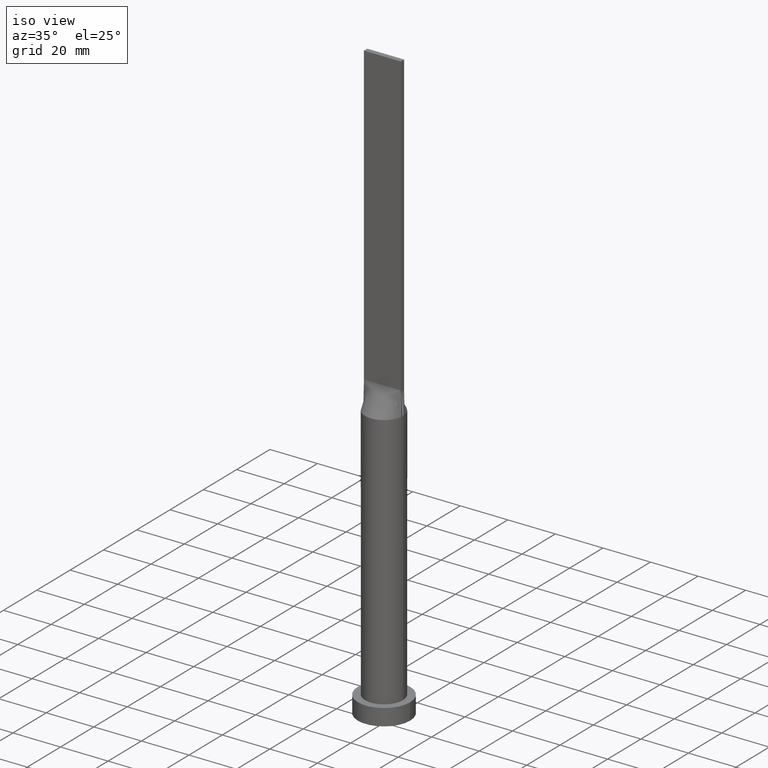
[diagram: clean part render]
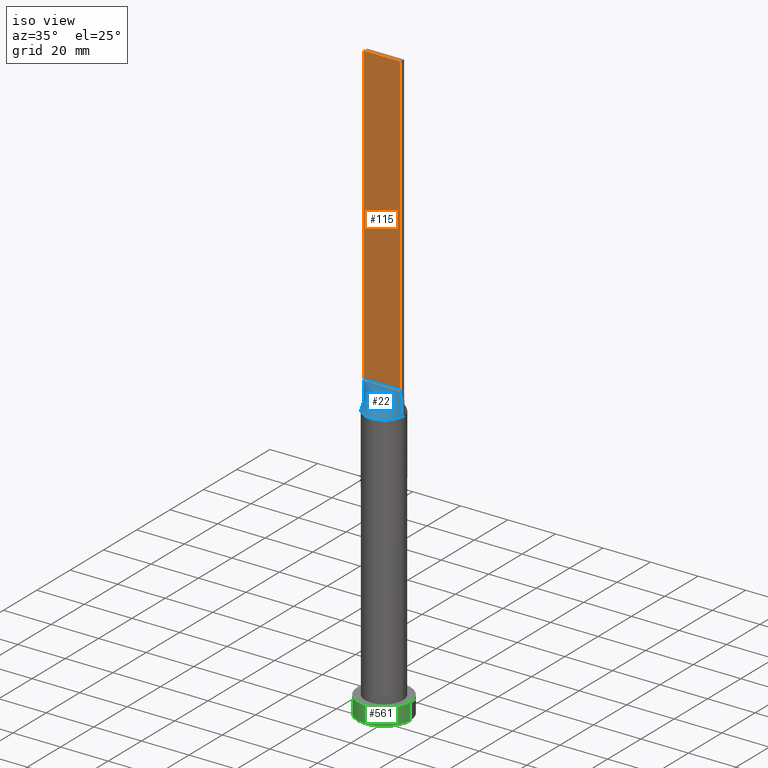
[diagram: same view with three faces highlighted in distinct colors, each labeled with its STEP entity id]
A machine part, iso view with three faces highlighted in distinct colors.
Their STEP definitions:

[orange] entity #115 — the highlighted planar face has unit normal (0, 1, -0).
#6 = AXIS2_PLACEMENT_3D ( 'NONE', #38, #395, #391 ) ;
#13 = CARTESIAN_POINT ( 'NONE',  ( -7.750000000000000000, -0.9999999999999986677, 250.0000000000000000 ) ) ;
#15 = ORIENTED_EDGE ( 'NONE', *, *, #418, .T. ) ;
#28 = ORIENTED_EDGE ( 'NONE', *, *, #385, .F. ) ;
#31 = CARTESIAN_POINT ( 'NONE',  ( 7.750000000000000000, -0.9999999999999997780, 250.0000000000000000 ) ) ;
#35 = CARTESIAN_POINT ( 'NONE',  ( 7.750000000000000000, -0.9999999999999997780, 125.0000000000000000 ) ) ;
#38 = CARTESIAN_POINT ( 'NONE',  ( -7.750000000000000000, -0.9999999999999986677, 250.0000000000000000 ) ) ;
#66 = ORIENTED_EDGE ( 'NONE', *, *, #503, .T. ) ;
#80 = VERTEX_POINT ( 'NONE', #31 ) ;
#115 = ADVANCED_FACE ( 'NONE', ( #487 ), #493, .F. ) ;
#144 = CARTESIAN_POINT ( 'NONE',  ( -7.750000000000000000, -0.9999999999999986677, 125.0000000000000000 ) ) ;
#166 = LINE ( 'NONE', #13, #420 ) ;
#167 = ORIENTED_EDGE ( 'NONE', *, *, #442, .F. ) ;
#180 = LINE ( 'NONE', #186, #358 ) ;
#186 = CARTESIAN_POINT ( 'NONE',  ( -7.750000000000000000, -0.9999999999999986677, 125.0000000000000000 ) ) ;
#205 = VECTOR ( 'NONE', #286, 1000.000000000000000 ) ;
#217 = CARTESIAN_POINT ( 'NONE',  ( -7.750000000000000000, -0.9999999999999986677, 250.0000000000000000 ) ) ;
#223 = VERTEX_POINT ( 'NONE', #144 ) ;
#231 = CARTESIAN_POINT ( 'NONE',  ( 7.750000000000000000, -0.9999999999999997780, 250.0000000000000000 ) ) ;
#284 = DIRECTION ( 'NONE',  ( -0.000000000000000000, -0.000000000000000000, -1.000000000000000000 ) ) ;
#286 = DIRECTION ( 'NONE',  ( -0.000000000000000000, -0.000000000000000000, -1.000000000000000000 ) ) ;
#333 = EDGE_LOOP ( 'NONE', ( #66, #167, #28, #15 ) ) ;
#344 = LINE ( 'NONE', #622, #458 ) ;
#358 = VECTOR ( 'NONE', #483, 1000.000000000000000 ) ;
#379 = VERTEX_POINT ( 'NONE', #217 ) ;
#385 = EDGE_CURVE ( 'NONE', #379, #80, #166, .T. ) ;
#391 = DIRECTION ( 'NONE',  ( -1.000000000000000000, 6.994852725712931474E-17, 0.000000000000000000 ) ) ;
#395 = DIRECTION ( 'NONE',  ( 6.994852725712931474E-17, 1.000000000000000000, -0.000000000000000000 ) ) ;
#415 = VERTEX_POINT ( 'NONE', #35 ) ;
#418 = EDGE_CURVE ( 'NONE', #379, #223, #344, .T. ) ;
#420 = VECTOR ( 'NONE', #562, 1000.000000000000000 ) ;
#442 = EDGE_CURVE ( 'NONE', #80, #415, #535, .T. ) ;
#458 = VECTOR ( 'NONE', #284, 1000.000000000000000 ) ;
#483 = DIRECTION ( 'NONE',  ( 1.000000000000000000, -6.994852725712931474E-17, 0.000000000000000000 ) ) ;
#487 = FACE_OUTER_BOUND ( 'NONE', #333, .T. ) ;
#493 = PLANE ( 'NONE',  #6 ) ;
#503 = EDGE_CURVE ( 'NONE', #223, #415, #180, .T. ) ;
#535 = LINE ( 'NONE', #231, #205 ) ;
#562 = DIRECTION ( 'NONE',  ( 1.000000000000000000, -6.994852725712931474E-17, 0.000000000000000000 ) ) ;
#622 = CARTESIAN_POINT ( 'NONE',  ( -7.750000000000000000, -0.9999999999999986677, 250.0000000000000000 ) ) ;

[blue] entity #22 — the highlighted face is a freeform B-spline surface patch.
#14 = CARTESIAN_POINT ( 'NONE',  ( 2.847317194822259534, -7.497028652483948008, 115.0000000000000284 ) ) ;
#19 = DIRECTION ( 'NONE',  ( -0.01841911599500831165, 0.002376660128388246706, 0.9998275289531671772 ) ) ;
#22 = ADVANCED_FACE ( 'NONE', ( #269 ), #638, .T. ) ;
#35 = CARTESIAN_POINT ( 'NONE',  ( 7.750000000000000000, -0.9999999999999997780, 125.0000000000000000 ) ) ;
#49 = CARTESIAN_POINT ( 'NONE',  ( -5.166666666666667851, -0.9999999999999986677, 125.0000000000000000 ) ) ;
#53 = CARTESIAN_POINT ( 'NONE',  ( -2.302877821226939403, -7.683241396761614439, 115.0000000000000568 ) ) ;
#55 = CARTESIAN_POINT ( 'NONE',  ( -4.197916666666667851, -0.9999999999999986677, 125.0000000000000000 ) ) ;
#56 = CARTESIAN_POINT ( 'NONE',  ( 6.511821874825406198, -4.668925682402793598, 115.0000000000000000 ) ) ;
#58 = CARTESIAN_POINT ( 'NONE',  ( -1.291666666666670071, -0.9999999999999991118, 125.0000000000000000 ) ) ;
#60 = CARTESIAN_POINT ( 'NONE',  ( 1.291666666666661856, -0.9999999999999991118, 125.0000000000000000 ) ) ;
#71 = CARTESIAN_POINT ( 'NONE',  ( -4.333237558274724677, -6.745559271922134670, 115.0000000000000284 ) ) ;
#74 = CARTESIAN_POINT ( 'NONE',  ( 7.104166666666666963, -0.9999999999999995559, 125.0000000000000000 ) ) ;
#91 = LINE ( 'NONE', #219, #408 ) ;
#94 = CARTESIAN_POINT ( 'NONE',  ( 0.000000000000000000, 0.000000000000000000, 115.0000000000000000 ) ) ;
#105 = CARTESIAN_POINT ( 'NONE',  ( 5.562660223239390689, -5.770452176164421410, 115.0000000000000142 ) ) ;
#107 = CARTESIAN_POINT ( 'NONE',  ( 2.302877821226934074, -7.683241396761609998, 115.0000000000000284 ) ) ;
#116 = CARTESIAN_POINT ( 'NONE',  ( 6.994548530637813677, -3.908833842696238570, 114.9999999999999858 ) ) ;
#125 = CARTESIAN_POINT ( 'NONE',  ( 3.862537548001456322, -7.028047916340264045, 115.0000000000000284 ) ) ;
#144 = CARTESIAN_POINT ( 'NONE',  ( -7.750000000000000000, -0.9999999999999986677, 125.0000000000000000 ) ) ;
#152 = CARTESIAN_POINT ( 'NONE',  ( -6.994548530637818118, -3.908833842696237681, 115.0000000000000142 ) ) ;
#159 = CARTESIAN_POINT ( 'NONE',  ( -2.260416666666669183, -0.9999999999999991118, 125.0000000000000000 ) ) ;
#168 = CARTESIAN_POINT ( 'NONE',  ( 1.614583333333328818, -0.9999999999999991118, 125.0000000000000000 ) ) ;
#169 = CARTESIAN_POINT ( 'NONE',  ( -1.614583333333336368, -0.9999999999999991118, 125.0000000000000000 ) ) ;
#170 = CARTESIAN_POINT ( 'NONE',  ( -7.104166666666666963, -0.9999999999999986677, 125.0000000000000000 ) ) ;
#172 = CARTESIAN_POINT ( 'NONE',  ( -7.849610172922084850, -1.679519592204998357, 115.0000000000000284 ) ) ;
#177 = CARTESIAN_POINT ( 'NONE',  ( 6.458333333333333037, -0.9999999999999995559, 125.0000000000000000 ) ) ;
#180 = LINE ( 'NONE', #186, #358 ) ;
#183 = LINE ( 'NONE', #422, #300 ) ;
#186 = CARTESIAN_POINT ( 'NONE',  ( -7.750000000000000000, -0.9999999999999986677, 125.0000000000000000 ) ) ;
#195 = EDGE_CURVE ( 'NONE', #292, #226, #635, .T. ) ;
#202 = CARTESIAN_POINT ( 'NONE',  ( 6.226863775955932212, -5.046530946333159129, 115.0000000000000000 ) ) ;
#208 = ORIENTED_EDGE ( 'NONE', *, *, #495, .T. ) ;
#210 = CARTESIAN_POINT ( 'NONE',  ( 3.229166666666663854, -0.9999999999999993339, 125.0000000000000000 ) ) ;
#211 = CARTESIAN_POINT ( 'NONE',  ( -0.5861720261543158506, -7.999999999999998224, 115.0000000000000142 ) ) ;
#219 = CARTESIAN_POINT ( 'NONE',  ( 7.842111466536100473, -1.011885350520787430, 120.0000000000000000 ) ) ;
#220 = CARTESIAN_POINT ( 'NONE',  ( -7.934222933072202721, -1.023770701041571973, 115.0000000000000000 ) ) ;
#223 = VERTEX_POINT ( 'NONE', #144 ) ;
#224 = CARTESIAN_POINT ( 'NONE',  ( 7.750000000000000000, -0.9999999999999997780, 125.0000000000000000 ) ) ;
#226 = VERTEX_POINT ( 'NONE', #389 ) ;
#253 = CARTESIAN_POINT ( 'NONE',  ( 5.183259239191612799, -6.116644610143060490, 115.0000000000000000 ) ) ;
#256 = CARTESIAN_POINT ( 'NONE',  ( 0.3229166666666631325, -0.9999999999999991118, 125.0000000000000000 ) ) ;
#258 = CARTESIAN_POINT ( 'NONE',  ( -1.172177046651859511, -7.934824862069280726, 115.0000000000000000 ) ) ;
#264 = CARTESIAN_POINT ( 'NONE',  ( -2.847317194822263531, -7.497028652483947120, 115.0000000000000426 ) ) ;
#267 = CARTESIAN_POINT ( 'NONE',  ( -3.862537548001458987, -7.028047916340261381, 115.0000000000000284 ) ) ;
#269 = FACE_OUTER_BOUND ( 'NONE', #505, .T. ) ;
#275 = CARTESIAN_POINT ( 'NONE',  ( 7.675166908885234562, -2.399868494543666131, 114.9999999999999858 ) ) ;
#292 = VERTEX_POINT ( 'NONE', #410 ) ;
#300 = VECTOR ( 'NONE', #441, 1000.000000000000114 ) ;
#305 = CARTESIAN_POINT ( 'NONE',  ( -5.489583333333333925, -0.9999999999999986677, 125.0000000000000000 ) ) ;
#308 = CARTESIAN_POINT ( 'NONE',  ( 2.583333333333329929, -0.9999999999999991118, 125.0000000000000000 ) ) ;
#310 = CARTESIAN_POINT ( 'NONE',  ( -6.226863775955933988, -5.046530946333157353, 114.9999999999999858 ) ) ;
#312 = CARTESIAN_POINT ( 'NONE',  ( 3.552083333333331261, -0.9999999999999993339, 125.0000000000000000 ) ) ;
#318 = CARTESIAN_POINT ( 'NONE',  ( 5.489583333333332149, -0.9999999999999995559, 125.0000000000000000 ) ) ;
#321 = CARTESIAN_POINT ( 'NONE',  ( -3.229166666666668739, -0.9999999999999986677, 125.0000000000000000 ) ) ;
#324 = ORIENTED_EDGE ( 'NONE', *, *, #485, .T. ) ;
#330 = CARTESIAN_POINT ( 'NONE',  ( -7.675166908885238115, -2.399868494543664799, 115.0000000000000000 ) ) ;
#335 = CARTESIAN_POINT ( 'NONE',  ( -5.183259239191617240, -6.116644610143057825, 115.0000000000000284 ) ) ;
#358 = VECTOR ( 'NONE', #483, 1000.000000000000000 ) ;
#364 = CARTESIAN_POINT ( 'NONE',  ( -6.511821874825411527, -4.668925682402791821, 115.0000000000000284 ) ) ;
#366 = AXIS2_PLACEMENT_3D ( 'NONE', #94, #402, #585 ) ;
#369 = CARTESIAN_POINT ( 'NONE',  ( 0.6458333333333292625, -0.9999999999999991118, 125.0000000000000000 ) ) ;
#375 = CARTESIAN_POINT ( 'NONE',  ( -6.458333333333333037, -0.9999999999999986677, 125.0000000000000000 ) ) ;
#389 = CARTESIAN_POINT ( 'NONE',  ( 7.934268799922667981, -1.023776637617846319, 115.0000000000000000 ) ) ;
#402 = DIRECTION ( 'NONE',  ( 0.000000000000000000, 0.000000000000000000, 1.000000000000000000 ) ) ;
#408 = VECTOR ( 'NONE', #19, 1000.000000000000114 ) ;
#409 = CARTESIAN_POINT ( 'NONE',  ( 4.333237558274721124, -6.745559271922137334, 115.0000000000000426 ) ) ;
#410 = CARTESIAN_POINT ( 'NONE',  ( -7.934257051336532029, -1.023775119746132001, 115.0000000000000000 ) ) ;
#414 = CARTESIAN_POINT ( 'NONE',  ( -5.562660223239391577, -5.770452176164420521, 115.0000000000000000 ) ) ;
#415 = VERTEX_POINT ( 'NONE', #35 ) ;
#421 = CARTESIAN_POINT ( 'NONE',  ( 5.166666666666665186, -0.9999999999999995559, 125.0000000000000000 ) ) ;
#422 = CARTESIAN_POINT ( 'NONE',  ( -7.842111466536100473, -1.011885350520785209, 120.0000000000000000 ) ) ;
#423 = CARTESIAN_POINT ( 'NONE',  ( -7.750000000000000000, -0.9999999999999986677, 125.0000000000000000 ) ) ;
#424 = CARTESIAN_POINT ( 'NONE',  ( 1.172177046651855292, -7.934824862069280726, 115.0000000000000568 ) ) ;
#425 = ORIENTED_EDGE ( 'NONE', *, *, #195, .T. ) ;
#430 = CARTESIAN_POINT ( 'NONE',  ( -3.552083333333335258, -0.9999999999999986677, 125.0000000000000000 ) ) ;
#441 = DIRECTION ( 'NONE',  ( -0.01841911599500848859, -0.002376660128388073667, -0.9998275289531671772 ) ) ;
#461 = CARTESIAN_POINT ( 'NONE',  ( -0.6458333333333368120, -0.9999999999999991118, 125.0000000000000000 ) ) ;
#471 = CARTESIAN_POINT ( 'NONE',  ( -2.583333333333335702, -0.9999999999999988898, 125.0000000000000000 ) ) ;
#483 = DIRECTION ( 'NONE',  ( 1.000000000000000000, -6.994852725712931474E-17, 0.000000000000000000 ) ) ;
#485 = EDGE_CURVE ( 'NONE', #226, #415, #91, .T. ) ;
#495 = EDGE_CURVE ( 'NONE', #223, #292, #183, .T. ) ;
#503 = EDGE_CURVE ( 'NONE', #223, #415, #180, .T. ) ;
#505 = EDGE_LOOP ( 'NONE', ( #425, #324, #615, #208 ) ) ;
#506 = CARTESIAN_POINT ( 'NONE',  ( 4.197916666666664298, -0.9999999999999993339, 125.0000000000000000 ) ) ;
#521 = CARTESIAN_POINT ( 'NONE',  ( 2.260416666666662966, -0.9999999999999991118, 125.0000000000000000 ) ) ;
#524 = CARTESIAN_POINT ( 'NONE',  ( 7.849610172922084850, -1.679519592204998357, 115.0000000000000000 ) ) ;
#540 = CARTESIAN_POINT ( 'NONE',  ( -7.192469010134850294, -3.526369025759695131, 114.9999999999999858 ) ) ;
#555 = CARTESIAN_POINT ( 'NONE',  ( -4.520833333333333925, -0.9999999999999986677, 125.0000000000000000 ) ) ;
#557 = CARTESIAN_POINT ( 'NONE',  ( -0.3229166666666698493, -0.9999999999999991118, 125.0000000000000000 ) ) ;
#568 = CARTESIAN_POINT ( 'NONE',  ( 7.934222933072200945, -1.023770701041574860, 115.0000000000000000 ) ) ;
#585 = DIRECTION ( 'NONE',  ( 1.000000000000000000, 0.000000000000000000, 0.000000000000000000 ) ) ;
#596 = CARTESIAN_POINT ( 'NONE',  ( 4.520833333333330373, -0.9999999999999995559, 125.0000000000000000 ) ) ;
#607 = CARTESIAN_POINT ( 'NONE',  ( 0.5861720261543107435, -8.000000000000001776, 115.0000000000000426 ) ) ;
#615 = ORIENTED_EDGE ( 'NONE', *, *, #503, .F. ) ;
#616 = CARTESIAN_POINT ( 'NONE',  ( 7.192469010134844964, -3.526369025759696907, 114.9999999999999716 ) ) ;
#635 = CIRCLE ( 'NONE', #366, 8.000000000000000000 ) ;
#638 = B_SPLINE_SURFACE_WITH_KNOTS ( 'NONE', 3, 1, ( 
 ( #220, #423 ),
 ( #172, #170 ),
 ( #330, #375 ),
 ( #540, #305 ),
 ( #152, #49 ),
 ( #364, #555 ),
 ( #310, #55 ),
 ( #414, #430 ),
 ( #335, #321 ),
 ( #71, #471 ),
 ( #267, #159 ),
 ( #264, #169 ),
 ( #53, #58 ),
 ( #258, #461 ),
 ( #211, #557 ),
 ( #607, #256 ),
 ( #424, #369 ),
 ( #107, #60 ),
 ( #14, #168 ),
 ( #125, #521 ),
 ( #409, #308 ),
 ( #253, #210 ),
 ( #105, #312 ),
 ( #202, #506 ),
 ( #56, #596 ),
 ( #116, #421 ),
 ( #616, #318 ),
 ( #275, #177 ),
 ( #524, #74 ),
 ( #568, #224 ) ),
 .UNSPECIFIED., .F., .F., .F.,
 ( 4, 2, 2, 2, 2, 2, 2, 2, 2, 2, 2, 2, 2, 2, 4 ),
 ( 2, 2 ),
 ( 0.000000000000000000, 0.1250000000000000555, 0.1875000000000000555, 0.2500000000000000555, 0.3125000000000000000, 0.3750000000000000000, 0.4374999999999999445, 0.4999999999999999445, 0.5624999999999998890, 0.6249999999999998890, 0.6875000000000000000, 0.7500000000000000000, 0.8125000000000000000, 0.8750000000000000000, 1.000000000000000000 ),
 ( 0.000000000000000000, 1.000000000000000000 ),
 .UNSPECIFIED. ) ;

[green] entity #561 — the highlighted cylindrical surface (edge-blend (fillet) strip) has radius 11 mm, axis along (-0, -0, -1).
#11 = DIRECTION ( 'NONE',  ( 0.000000000000000000, 0.000000000000000000, 1.000000000000000000 ) ) ;
#32 = DIRECTION ( 'NONE',  ( -1.000000000000000000, 0.000000000000000000, 0.000000000000000000 ) ) ;
#47 = DIRECTION ( 'NONE',  ( 0.000000000000000000, 0.000000000000000000, 1.000000000000000000 ) ) ;
#67 = VECTOR ( 'NONE', #480, 1000.000000000000000 ) ;
#81 = ORIENTED_EDGE ( 'NONE', *, *, #509, .T. ) ;
#85 = CARTESIAN_POINT ( 'NONE',  ( 0.000000000000000000, 0.000000000000000000, 7.000000000000000000 ) ) ;
#99 = AXIS2_PLACEMENT_3D ( 'NONE', #502, #11, #101 ) ;
#101 = DIRECTION ( 'NONE',  ( 1.000000000000000000, 0.000000000000000000, 0.000000000000000000 ) ) ;
#110 = CIRCLE ( 'NONE', #271, 11.00000000000000000 ) ;
#138 = CARTESIAN_POINT ( 'NONE',  ( -11.00000000000000000, 0.000000000000000000, 0.000000000000000000 ) ) ;
#174 = AXIS2_PLACEMENT_3D ( 'NONE', #85, #237, #32 ) ;
#191 = DIRECTION ( 'NONE',  ( -0.000000000000000000, -0.000000000000000000, -1.000000000000000000 ) ) ;
#192 = ORIENTED_EDGE ( 'NONE', *, *, #227, .F. ) ;
#201 = DIRECTION ( 'NONE',  ( 1.000000000000000000, 0.000000000000000000, 0.000000000000000000 ) ) ;
#218 = VERTEX_POINT ( 'NONE', #138 ) ;
#227 = EDGE_CURVE ( 'NONE', #609, #479, #345, .T. ) ;
#237 = DIRECTION ( 'NONE',  ( -0.000000000000000000, -0.000000000000000000, -1.000000000000000000 ) ) ;
#241 = CARTESIAN_POINT ( 'NONE',  ( 11.00000000000000000, 1.347111479062088405E-15, 7.000000000000000000 ) ) ;
#271 = AXIS2_PLACEMENT_3D ( 'NONE', #397, #47, #201 ) ;
#291 = ORIENTED_EDGE ( 'NONE', *, *, #619, .T. ) ;
#306 = EDGE_CURVE ( 'NONE', #564, #609, #477, .T. ) ;
#345 = LINE ( 'NONE', #241, #354 ) ;
#354 = VECTOR ( 'NONE', #191, 1000.000000000000000 ) ;
#373 = ORIENTED_EDGE ( 'NONE', *, *, #306, .F. ) ;
#397 = CARTESIAN_POINT ( 'NONE',  ( 0.000000000000000000, 0.000000000000000000, 0.000000000000000000 ) ) ;
#434 = CARTESIAN_POINT ( 'NONE',  ( -11.00000000000000000, 0.000000000000000000, 7.000000000000000000 ) ) ;
#457 = CARTESIAN_POINT ( 'NONE',  ( 11.00000000000000000, 1.347111479062088405E-15, 7.000000000000000000 ) ) ;
#477 = CIRCLE ( 'NONE', #99, 11.00000000000000000 ) ;
#479 = VERTEX_POINT ( 'NONE', #624 ) ;
#480 = DIRECTION ( 'NONE',  ( -0.000000000000000000, -0.000000000000000000, -1.000000000000000000 ) ) ;
#489 = LINE ( 'NONE', #533, #67 ) ;
#502 = CARTESIAN_POINT ( 'NONE',  ( 0.000000000000000000, 0.000000000000000000, 7.000000000000000000 ) ) ;
#509 = EDGE_CURVE ( 'NONE', #564, #218, #489, .T. ) ;
#526 = CYLINDRICAL_SURFACE ( 'NONE', #174, 11.00000000000000000 ) ;
#530 = FACE_OUTER_BOUND ( 'NONE', #611, .T. ) ;
#533 = CARTESIAN_POINT ( 'NONE',  ( -11.00000000000000000, 0.000000000000000000, 7.000000000000000000 ) ) ;
#561 = ADVANCED_FACE ( 'NONE', ( #530 ), #526, .T. ) ;
#564 = VERTEX_POINT ( 'NONE', #434 ) ;
#609 = VERTEX_POINT ( 'NONE', #457 ) ;
#611 = EDGE_LOOP ( 'NONE', ( #192, #373, #81, #291 ) ) ;
#619 = EDGE_CURVE ( 'NONE', #218, #479, #110, .T. ) ;
#624 = CARTESIAN_POINT ( 'NONE',  ( 11.00000000000000000, 1.347111479062088405E-15, 0.000000000000000000 ) ) ;